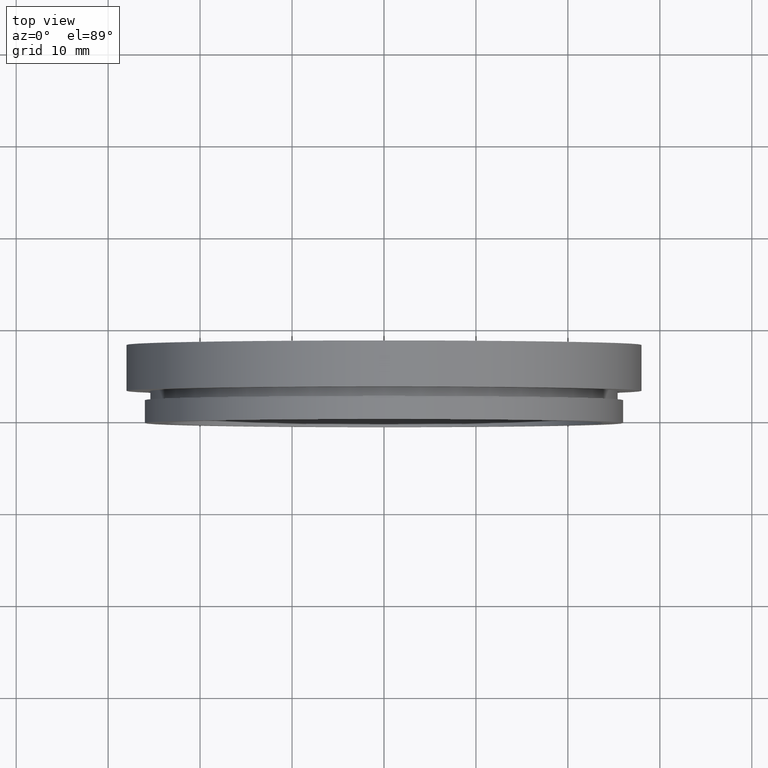
[diagram: clean part render]
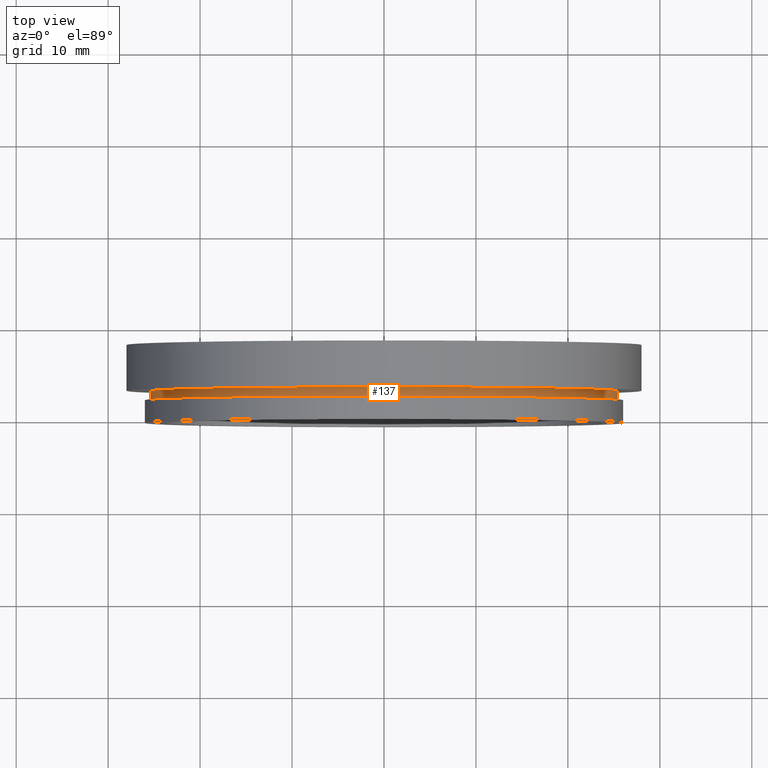
[diagram: same view with one face highlighted and labeled with its STEP entity id]
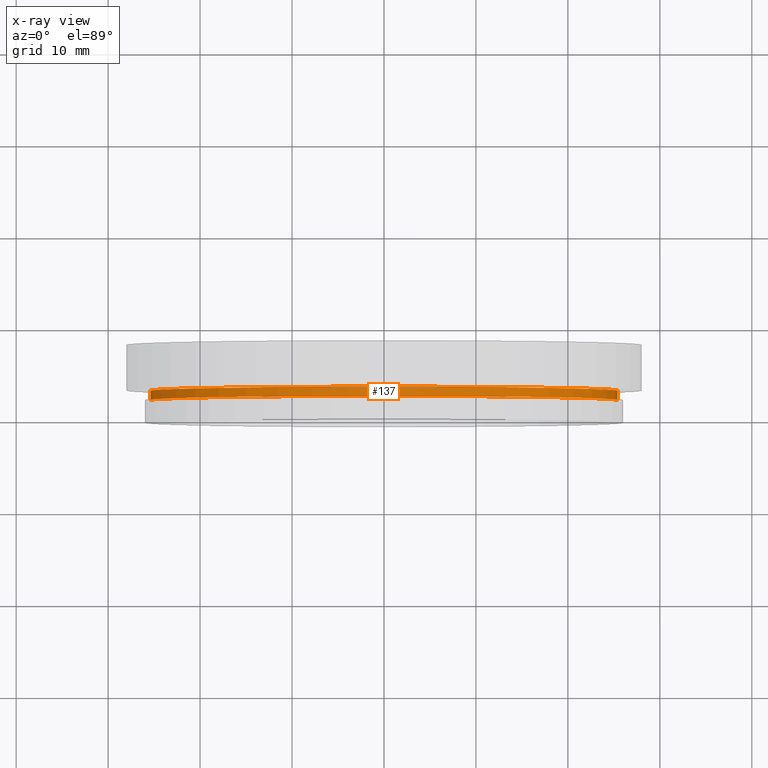
[diagram: x-ray of the same camera — body ghosted, the highlighted face saturated]
A machine part, top view. The second image highlights one B-rep face of the part: STEP entity #137.
The next image is the same camera in x-ray: the body ghosted, the highlighted face saturated — about 0% of this face is hidden behind the body in this view.
In plain terms, the highlighted cylindrical surface (partial cylindrical patch) has radius 25.4 mm, axis along (-0, 1, -0).
Its self-contained STEP definition (entity closure, byte-faithful):
#4 = EDGE_CURVE ( 'NONE', #302, #423, #382, .T. ) ;
#20 = CARTESIAN_POINT ( 'NONE',  ( -25.39999999999999900, 2.954535588880331500, 0.0000000000000000000 ) ) ;
#22 = ORIENTED_EDGE ( 'NONE', *, *, #142, .T. ) ;
#29 = CARTESIAN_POINT ( 'NONE',  ( 25.39999999999999900, 16.88601823708208000, 3.110602869834276900E-015 ) ) ;
#32 = DIRECTION ( 'NONE',  ( -1.224646799147351000E-016, 1.000000000000000000, -0.0000000000000000000 ) ) ;
#49 = VERTEX_POINT ( 'NONE', #201 ) ;
#50 = VECTOR ( 'NONE', #189, 1000.000000000000000 ) ;
#59 = ORIENTED_EDGE ( 'NONE', *, *, #4, .F. ) ;
#68 = EDGE_CURVE ( 'NONE', #265, #302, #280, .T. ) ;
#73 = VECTOR ( 'NONE', #125, 1000.000000000000000 ) ;
#74 = AXIS2_PLACEMENT_3D ( 'NONE', #236, #32, #296 ) ;
#88 = CARTESIAN_POINT ( 'NONE',  ( 1.828579243164447600E-015, 1.954535588880333700, 0.0000000000000000000 ) ) ;
#90 = DIRECTION ( 'NONE',  ( -1.000000000000000000, -1.365923996832131600E-016, 0.0000000000000000000 ) ) ;
#93 = FACE_OUTER_BOUND ( 'NONE', #217, .T. ) ;
#111 = EDGE_CURVE ( 'NONE', #49, #423, #332, .T. ) ;
#125 = DIRECTION ( 'NONE',  ( -1.224646799147351000E-016, 1.000000000000000000, -0.0000000000000000000 ) ) ;
#134 = CARTESIAN_POINT ( 'NONE',  ( 25.39999999999999900, 2.954535588880337700, 3.110602869834276900E-015 ) ) ;
#137 = ADVANCED_FACE ( 'NONE', ( #93 ), #180, .T. ) ;
#142 = EDGE_CURVE ( 'NONE', #265, #49, #427, .T. ) ;
#180 = CYLINDRICAL_SURFACE ( 'NONE', #293, 25.39999999999999900 ) ;
#188 = ORIENTED_EDGE ( 'NONE', *, *, #111, .T. ) ;
#189 = DIRECTION ( 'NONE',  ( -1.224646799147351000E-016, 1.000000000000000000, -0.0000000000000000000 ) ) ;
#201 = CARTESIAN_POINT ( 'NONE',  ( 25.39999999999999900, 1.954535588880336600, 3.110602869834276900E-015 ) ) ;
#217 = EDGE_LOOP ( 'NONE', ( #22, #188, #59, #351 ) ) ;
#220 = AXIS2_PLACEMENT_3D ( 'NONE', #88, #233, #325 ) ;
#233 = DIRECTION ( 'NONE',  ( -1.224646799147351000E-016, 1.000000000000000000, -0.0000000000000000000 ) ) ;
#236 = CARTESIAN_POINT ( 'NONE',  ( 1.706114563249712100E-015, 2.954535588880334600, 0.0000000000000000000 ) ) ;
#265 = VERTEX_POINT ( 'NONE', #418 ) ;
#280 = LINE ( 'NONE', #299, #73 ) ;
#293 = AXIS2_PLACEMENT_3D ( 'NONE', #294, #395, #90 ) ;
#294 = CARTESIAN_POINT ( 'NONE',  ( 0.0000000000000000000, 16.88601823708207700, 0.0000000000000000000 ) ) ;
#296 = DIRECTION ( 'NONE',  ( -1.000000000000000000, -1.195183497228115300E-016, 0.0000000000000000000 ) ) ;
#299 = CARTESIAN_POINT ( 'NONE',  ( -25.39999999999999900, 16.88601823708207300, 0.0000000000000000000 ) ) ;
#302 = VERTEX_POINT ( 'NONE', #20 ) ;
#325 = DIRECTION ( 'NONE',  ( -1.000000000000000000, -1.195183497228115300E-016, 0.0000000000000000000 ) ) ;
#332 = LINE ( 'NONE', #29, #50 ) ;
#351 = ORIENTED_EDGE ( 'NONE', *, *, #68, .F. ) ;
#382 = CIRCLE ( 'NONE', #74, 25.39999999999999900 ) ;
#395 = DIRECTION ( 'NONE',  ( -1.224646799147351000E-016, 1.000000000000000000, -0.0000000000000000000 ) ) ;
#418 = CARTESIAN_POINT ( 'NONE',  ( -25.39999999999999100, 1.954535588880330600, 0.0000000000000000000 ) ) ;
#423 = VERTEX_POINT ( 'NONE', #134 ) ;
#427 = CIRCLE ( 'NONE', #220, 25.39999999999999500 ) ;